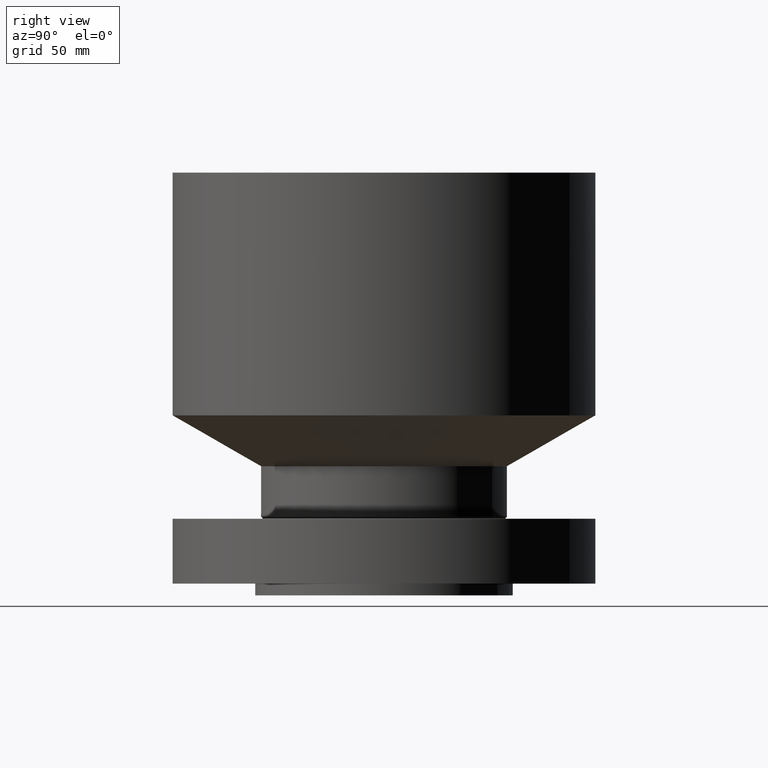
[diagram: clean part render]
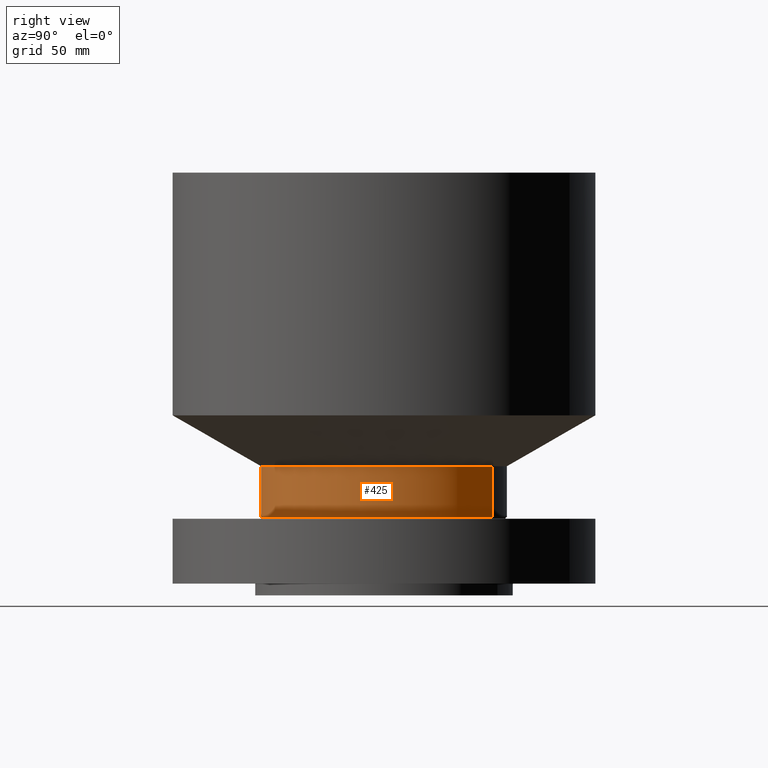
[diagram: same view with one face highlighted and labeled with its STEP entity id]
A machine part, right view. The second image highlights one B-rep face of the part: STEP entity #425.
In plain terms, the highlighted cylindrical surface (partial cylindrical patch) has radius 66.675 mm, axis along (0, 0, -1).
Its self-contained STEP definition (entity closure, byte-faithful):
#366=AXIS2_PLACEMENT_3D('Circle Axis2P3D',#364,#365,$) ;
#398=AXIS2_PLACEMENT_3D('Cylinder Axis2P3D',#395,#396,#397) ;
#409=AXIS2_PLACEMENT_3D('Circle Axis2P3D',#407,#408,$) ;
#361=CARTESIAN_POINT('Vertex',(1.25849203884,2.30365422497,1.42098076212)) ;
#364=CARTESIAN_POINT('Axis2P3D Location',(0.,0.,1.42098076212)) ;
#368=CARTESIAN_POINT('Vertex',(-1.25849203884,-2.30365422497,1.42098076212)) ;
#395=CARTESIAN_POINT('Axis2P3D Location',(0.,0.,4.25000000002)) ;
#400=CARTESIAN_POINT('Line Origine',(1.25849203884,2.30365422497,1.96049038106)) ;
#404=CARTESIAN_POINT('Vertex',(1.25849203884,2.30365422497,2.50000000001)) ;
#407=CARTESIAN_POINT('Axis2P3D Location',(0.,0.,2.50000000001)) ;
#411=CARTESIAN_POINT('Vertex',(-1.25849203884,-2.30365422497,2.50000000001)) ;
#414=CARTESIAN_POINT('Line Origine',(-1.25849203884,-2.30365422497,1.96049038106)) ;
#365=DIRECTION('Axis2P3D Direction',(-0.,0.,0.0393700787402)) ;
#396=DIRECTION('Axis2P3D Direction',(0.,0.,-0.0393700787402)) ;
#397=DIRECTION('Axis2P3D XDirection',(-0.0188750212049,-0.0345504945626,0.)) ;
#401=DIRECTION('Vector Direction',(0.,0.,-0.0393700787402)) ;
#408=DIRECTION('Axis2P3D Direction',(0.,0.,-0.0393700787402)) ;
#415=DIRECTION('Vector Direction',(0.,0.,-0.0393700787402)) ;
#402=VECTOR('Line Direction',#401,0.0393700787402) ;
#416=VECTOR('Line Direction',#415,0.0393700787402) ;
#420=ORIENTED_EDGE('',*,*,#370,.F.) ;
#421=ORIENTED_EDGE('',*,*,#406,.T.) ;
#422=ORIENTED_EDGE('',*,*,#413,.T.) ;
#423=ORIENTED_EDGE('',*,*,#418,.F.) ;
#425=ADVANCED_FACE('PartBody',(#424),#399,.T.) ;
#367=CIRCLE('generated circle',#366,2.62500000001) ;
#410=CIRCLE('generated circle',#409,2.62500000001) ;
#399=CYLINDRICAL_SURFACE('generated cylinder',#398,2.62500000001) ;
#370=EDGE_CURVE('',#362,#369,#367,.F.) ;
#406=EDGE_CURVE('',#362,#405,#403,.F.) ;
#413=EDGE_CURVE('',#405,#412,#410,.T.) ;
#418=EDGE_CURVE('',#369,#412,#417,.F.) ;
#419=EDGE_LOOP('',(#420,#421,#422,#423)) ;
#424=FACE_OUTER_BOUND('',#419,.T.) ;
#403=LINE('Line',#400,#402) ;
#417=LINE('Line',#414,#416) ;
#362=VERTEX_POINT('',#361) ;
#369=VERTEX_POINT('',#368) ;
#405=VERTEX_POINT('',#404) ;
#412=VERTEX_POINT('',#411) ;